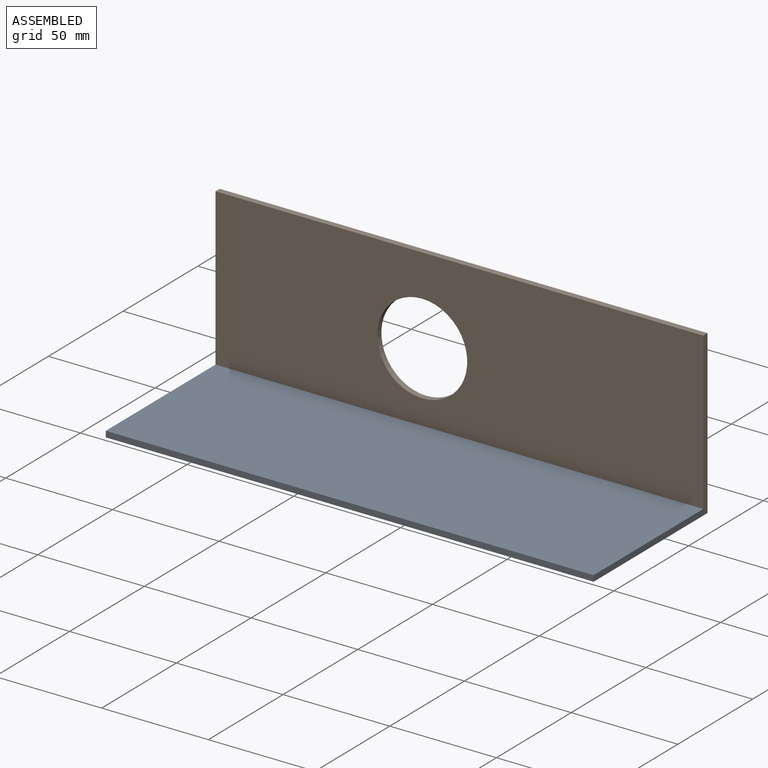
[diagram: assembled view]
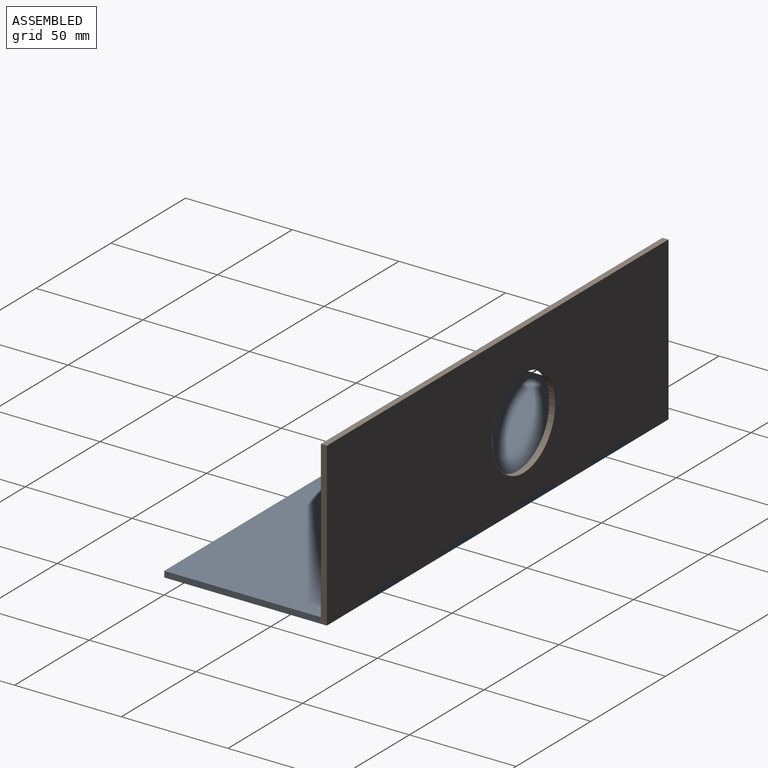
[diagram: assembled view, second angle]
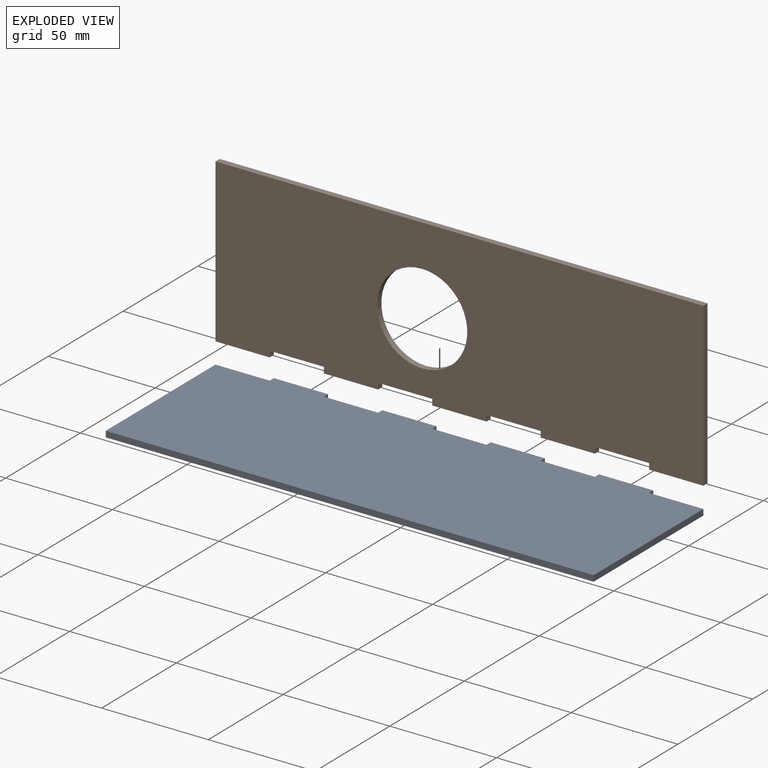
[diagram: exploded view]
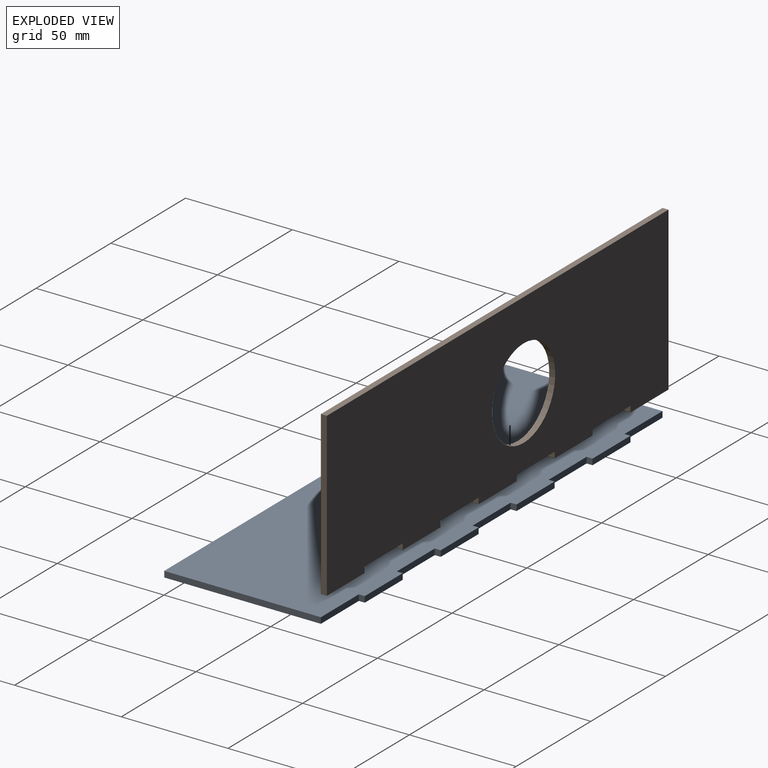
[diagram: exploded view, second angle]
ASSEMBLY  parts=2 mates=3
PART A: 22 faces, bbox 228.6x2.8x76.2 mm
  f0: plane 25.4x2.79mm, normal (0,0,-1), area 71mm2, adj f4,f5,f19,f21
  f1: plane 25.4x2.79mm, normal (0,0,-1), area 71mm2, adj f4,f5,f16,f17
  f2: plane 25.4x2.79mm, normal (0,0,-1), area 71mm2, adj f4,f5,f13,f14
  f3: plane 25.4x2.79mm, normal (0,0,-1), area 71mm2, adj f4,f5,f10,f11
  f4: plane 228.6x76.2mm, normal (0,-1,0), area 17064.5mm2, adj f0,f1,f2,f3,f6,f7,f8,f9
  f5: plane 228.6x76.2mm, normal (0,1,0), area 17064.5mm2, adj f0,f1,f2,f3,f6,f7,f8,f9
  f6: plane 228.6x2.79mm, normal (0,0,1), area 638.7mm2, adj f4,f5,f7,f8
  f7: plane 73.41x2.79mm, normal (-1,0,0), area 205.1mm2, adj f4,f5,f6,f20
  f8: plane 73.41x2.79mm, normal (1,0,0), area 205.1mm2, adj f4,f5,f6,f9
  f9: plane 25.4x2.79mm, normal (0,0,-1), area 71mm2, adj f4,f5,f8,f10
  f10: plane 2.79x2.79mm, normal (1,0,0), area 7.8mm2, adj f3,f4,f5,f9
  f11: plane 2.79x2.79mm, normal (-1,0,0), area 7.8mm2, adj f3,f4,f5,f12
  f12: plane 25.4x2.79mm, normal (0,0,-1), area 71mm2, adj f4,f5,f11,f13
  f13: plane 2.79x2.79mm, normal (1,0,0), area 7.8mm2, adj f2,f4,f5,f12
  f14: plane 2.79x2.79mm, normal (-1,0,0), area 7.8mm2, adj f2,f4,f5,f15
  f15: plane 25.4x2.79mm, normal (0,0,-1), area 71mm2, adj f4,f5,f14,f16
  f16: plane 2.79x2.79mm, normal (1,0,0), area 7.8mm2, adj f1,f4,f5,f15
  f17: plane 2.79x2.79mm, normal (-1,0,0), area 7.8mm2, adj f1,f4,f5,f18
  f18: plane 25.4x2.79mm, normal (0,0,-1), area 71mm2, adj f4,f5,f17,f19
  f19: plane 2.79x2.79mm, normal (1,0,0), area 7.8mm2, adj f0,f4,f5,f18
  f20: plane 25.4x2.79mm, normal (0,0,-1), area 71mm2, adj f4,f5,f7,f21
  f21: plane 2.79x2.79mm, normal (-1,0,0), area 7.8mm2, adj f0,f4,f5,f20
PART B: 23 faces, bbox 228.6x2.8x76.2 mm
  f0: plane 25.4x2.79mm, normal (0,0,-1), area 71mm2, adj f4,f5,f17,f21
  f1: plane 25.4x2.79mm, normal (0,0,-1), area 71mm2, adj f4,f5,f14,f18
  f2: plane 25.4x2.79mm, normal (0,0,-1), area 71mm2, adj f4,f5,f11,f15
  f3: plane 25.4x2.79mm, normal (0,0,-1), area 71mm2, adj f4,f5,f9,f12
  f4: plane 228.6x76.2mm, normal (0,-1,0), area 15736.8mm2, adj f0,f1,f2,f3,f6,f7,f8,f9
  f5: plane 228.6x76.2mm, normal (0,1,0), area 15736.8mm2, adj f0,f1,f2,f3,f6,f7,f8,f9
  f6: plane 228.6x2.79mm, normal (0,0,1), area 638.7mm2, adj f4,f5,f7,f9
  f7: plane 76.2x2.79mm, normal (-1,0,0), area 212.9mm2, adj f4,f5,f6,f8
  f8: plane 25.4x2.79mm, normal (0,0,-1), area 71mm2, adj f4,f5,f7,f20
  f9: plane 76.2x2.79mm, normal (1,0,0), area 212.9mm2, adj f3,f4,f5,f6
  f10: cylinder r=21.1mm len=42.2mm, axis (0,-1,0), area 370.4mm2, adj f4,f5
  f11: plane 2.79x2.79mm, normal (1,0,0), area 7.8mm2, adj f2,f4,f5,f13
  f12: plane 2.79x2.79mm, normal (-1,0,0), area 7.8mm2, adj f3,f4,f5,f13
  f13: plane 25.4x2.79mm, normal (0,0,-1), area 71mm2, adj f4,f5,f11,f12
  f14: plane 2.79x2.79mm, normal (1,0,0), area 7.8mm2, adj f1,f4,f5,f16
  f15: plane 2.79x2.79mm, normal (-1,0,0), area 7.8mm2, adj f2,f4,f5,f16
  f16: plane 25.4x2.79mm, normal (0,0,-1), area 71mm2, adj f4,f5,f14,f15
  f17: plane 2.79x2.79mm, normal (1,0,0), area 7.8mm2, adj f0,f4,f5,f19
  f18: plane 2.79x2.79mm, normal (-1,0,0), area 7.8mm2, adj f1,f4,f5,f19
  f19: plane 25.4x2.79mm, normal (0,0,-1), area 71mm2, adj f4,f5,f17,f18
  f20: plane 2.79x2.79mm, normal (1,0,0), area 7.8mm2, adj f4,f5,f8,f22
  f21: plane 2.79x2.79mm, normal (-1,0,0), area 7.8mm2, adj f0,f4,f5,f22
  f22: plane 25.4x2.79mm, normal (0,0,-1), area 71mm2, adj f4,f5,f20,f21
PLACE A rot(axis=(1,0,0),90deg) t=(197.56,-162.41,8.16)mm
PLACE B t=(-90.77,-128.18,107.85)mm
MATE planar A.f4 <-> B.f0  axis (0,0,-1) through (-120.72,-167.04,5.37)mm
MATE planar A.f3 <-> B.f5  axis (0,1,0) through (-44.52,-128.18,6.77)mm
MATE planar A.f8 <-> B.f9  axis (1,0,0) through (-6.42,-167.68,6.77)mm
